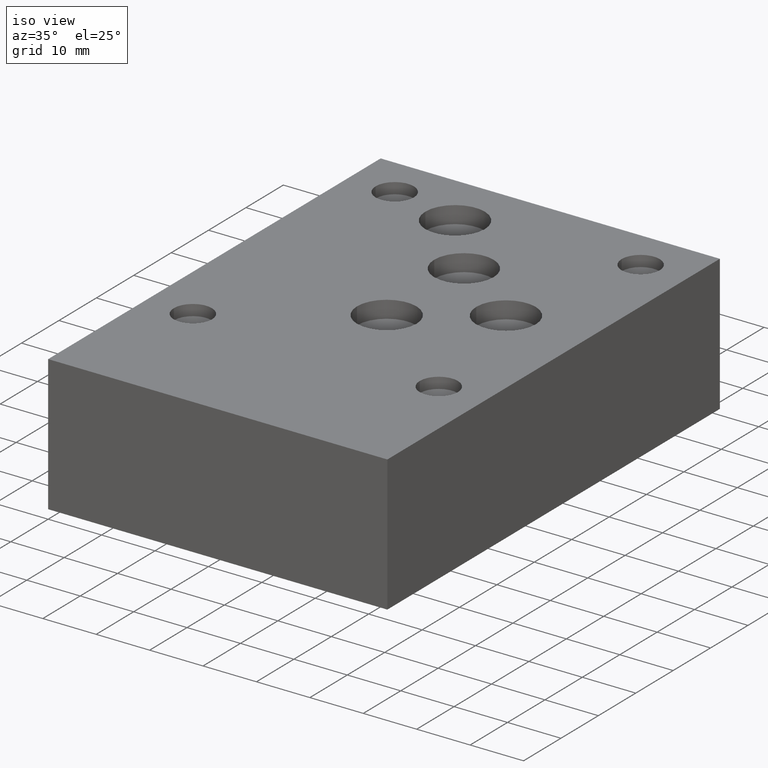
[diagram: clean part render]
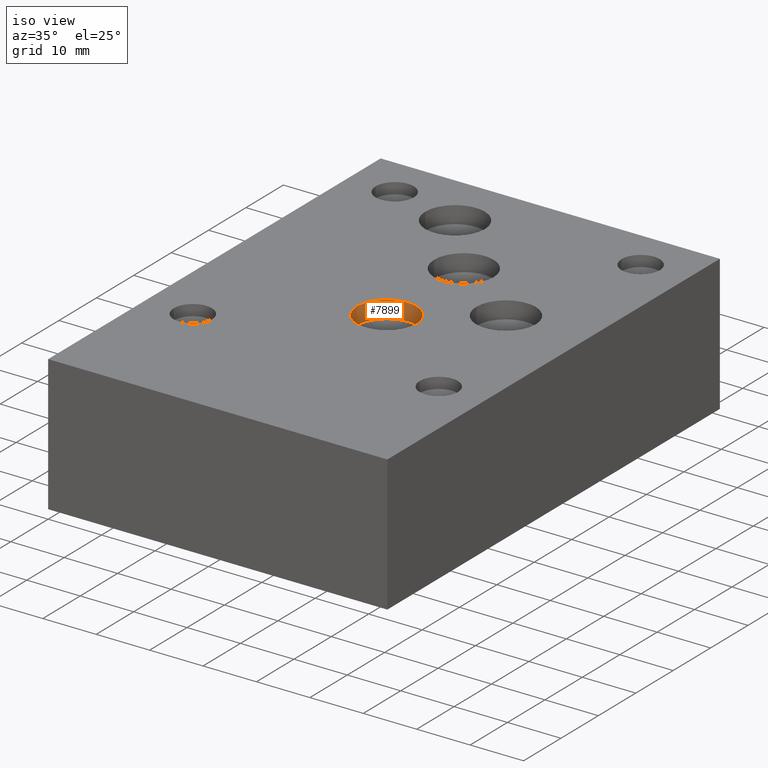
[diagram: same view with one face highlighted and labeled with its STEP entity id]
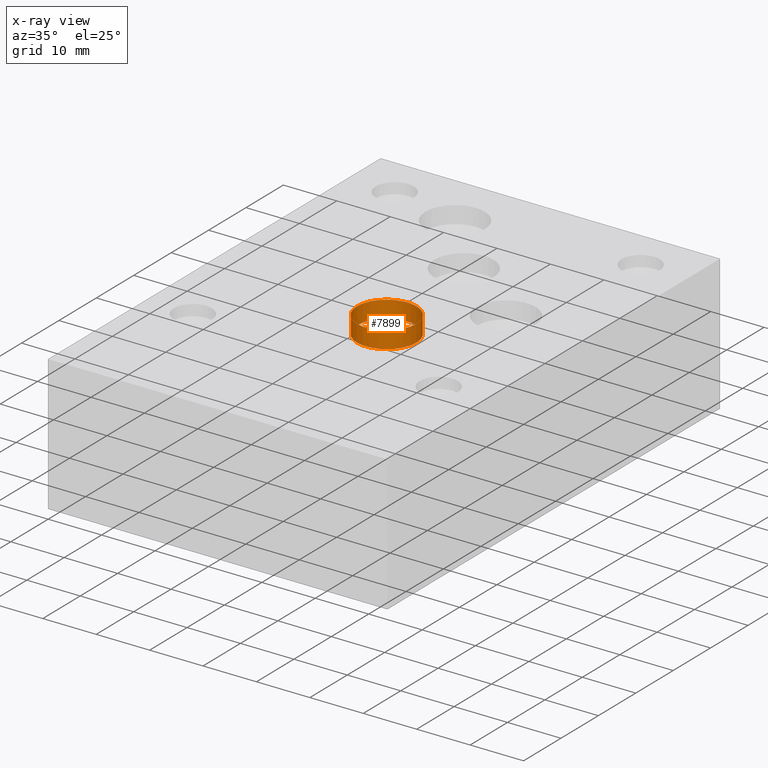
[diagram: x-ray of the same camera — body ghosted, the highlighted face saturated]
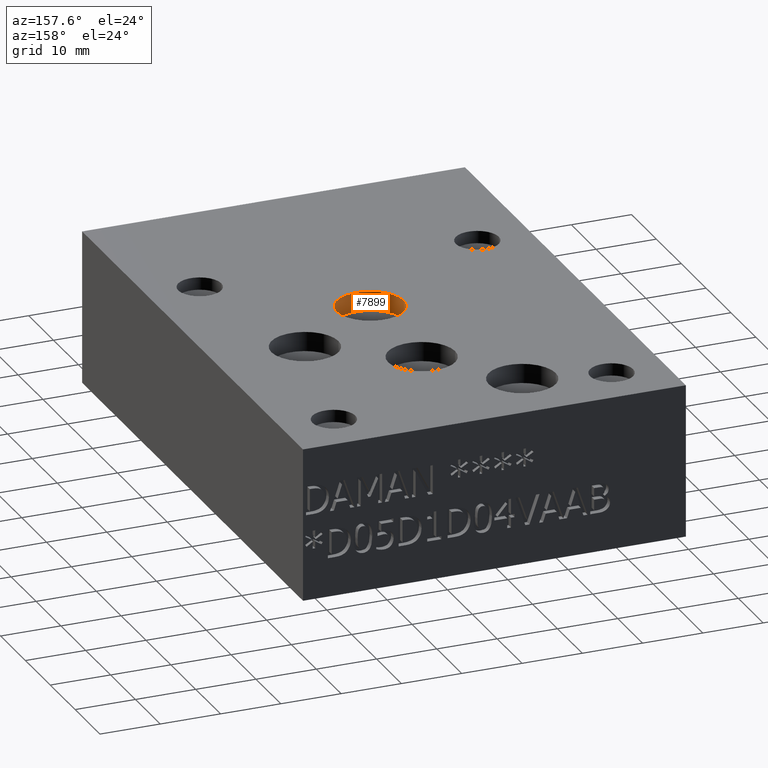
[diagram: same view with one face highlighted and labeled with its STEP entity id]
A machine part, iso view. The second image highlights one B-rep face of the part: STEP entity #7899.
The next image is the same camera in x-ray: the body ghosted, the highlighted face saturated — about 0% of this face is hidden behind the body in this view.
A second angle (auxiliary view) of the same face is appended — the face is thin or edge-on in the first view.
In plain terms, the highlighted cylindrical surface (bore or boss wall) has radius 5.5563 mm, axis along (0, 0, 1).
Its self-contained STEP definition (entity closure, byte-faithful):
#106=CIRCLE('',#8302,5.55625);
#107=CIRCLE('',#8303,5.55625);
#108=CIRCLE('',#8305,5.55625);
#109=CIRCLE('',#8306,5.55625);
#138=CYLINDRICAL_SURFACE('',#8304,5.55625);
#837=FACE_OUTER_BOUND('',#1274,.T.);
#1274=EDGE_LOOP('',(#6819,#6820,#6821,#6822,#6823,#6824));
#2110=LINE('',#13206,#2930);
#2930=VECTOR('',#9900,5.55625);
#3660=VERTEX_POINT('',#13195);
#3661=VERTEX_POINT('',#13196);
#3663=VERTEX_POINT('',#13202);
#3664=VERTEX_POINT('',#13203);
#4728=EDGE_CURVE('',#3660,#3661,#106,.T.);
#4730=EDGE_CURVE('',#3661,#3660,#107,.T.);
#4731=EDGE_CURVE('',#3663,#3664,#108,.T.);
#4732=EDGE_CURVE('',#3664,#3663,#109,.T.);
#4733=EDGE_CURVE('',#3664,#3661,#2110,.T.);
#6819=ORIENTED_EDGE('',*,*,#4731,.F.);
#6820=ORIENTED_EDGE('',*,*,#4732,.F.);
#6821=ORIENTED_EDGE('',*,*,#4733,.T.);
#6822=ORIENTED_EDGE('',*,*,#4728,.F.);
#6823=ORIENTED_EDGE('',*,*,#4730,.F.);
#6824=ORIENTED_EDGE('',*,*,#4733,.F.);
#7899=ADVANCED_FACE('',(#837),#138,.F.);
#8302=AXIS2_PLACEMENT_3D('',#13197,#9889,#9890);
#8303=AXIS2_PLACEMENT_3D('',#13200,#9892,#9893);
#8304=AXIS2_PLACEMENT_3D('',#13201,#9894,#9895);
#8305=AXIS2_PLACEMENT_3D('',#13204,#9896,#9897);
#8306=AXIS2_PLACEMENT_3D('',#13205,#9898,#9899);
#9889=DIRECTION('center_axis',(0.,0.,1.));
#9890=DIRECTION('ref_axis',(1.,0.,0.));
#9892=DIRECTION('center_axis',(0.,0.,1.));
#9893=DIRECTION('ref_axis',(1.,0.,0.));
#9894=DIRECTION('center_axis',(0.,0.,1.));
#9895=DIRECTION('ref_axis',(1.,0.,0.));
#9896=DIRECTION('center_axis',(0.,0.,-1.));
#9897=DIRECTION('ref_axis',(1.,0.,0.));
#9898=DIRECTION('center_axis',(0.,0.,-1.));
#9899=DIRECTION('ref_axis',(1.,0.,0.));
#9900=DIRECTION('',(0.,0.,-1.));
#13195=CARTESIAN_POINT('',(38.92423,42.87012,22.1921));
#13196=CARTESIAN_POINT('',(27.81173,42.87012,22.1921));
#13197=CARTESIAN_POINT('Origin',(33.36798,42.87012,22.1921));
#13200=CARTESIAN_POINT('Origin',(33.36798,42.87012,22.1921));
#13201=CARTESIAN_POINT('Origin',(33.36798,42.87012,23.79605));
#13202=CARTESIAN_POINT('',(38.92423,42.87012,25.4));
#13203=CARTESIAN_POINT('',(27.81173,42.87012,25.4));
#13204=CARTESIAN_POINT('Origin',(33.36798,42.87012,25.4));
#13205=CARTESIAN_POINT('Origin',(33.36798,42.87012,25.4));
#13206=CARTESIAN_POINT('',(27.81173,42.87012,23.79605));